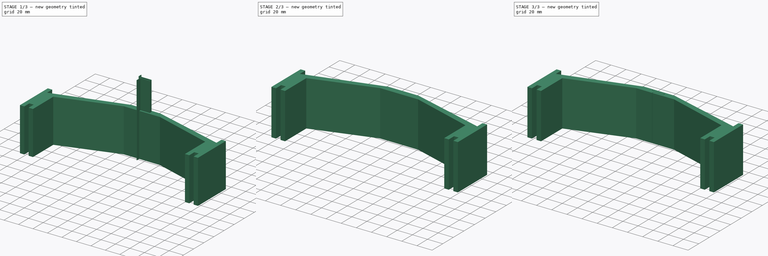
[diagram: build sequence overview — one tinted view per stage of 3, left to right]
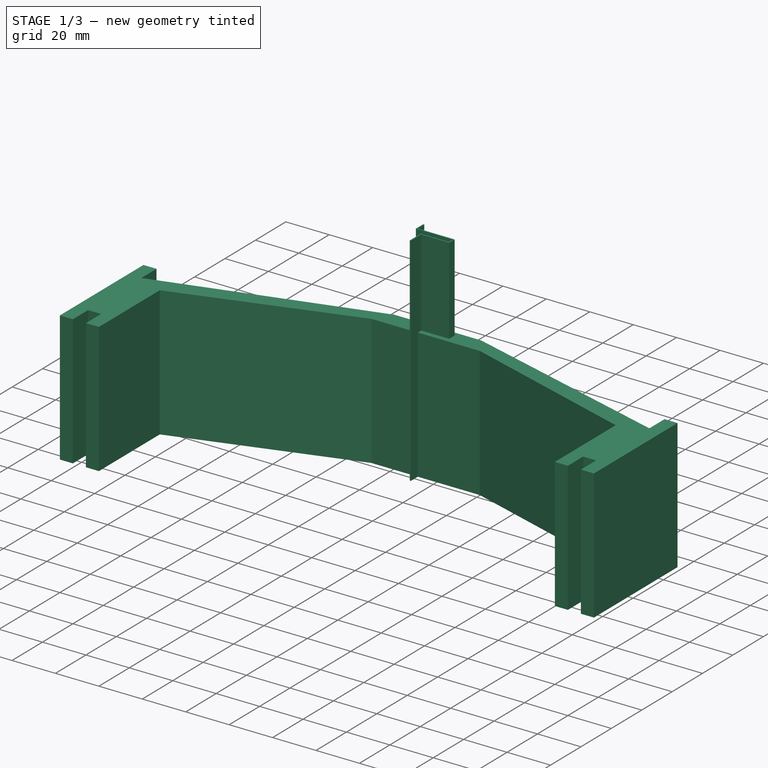
[diagram: stage 1 of 3 — iso view after this stage's code; geometry added in this stage tinted green]
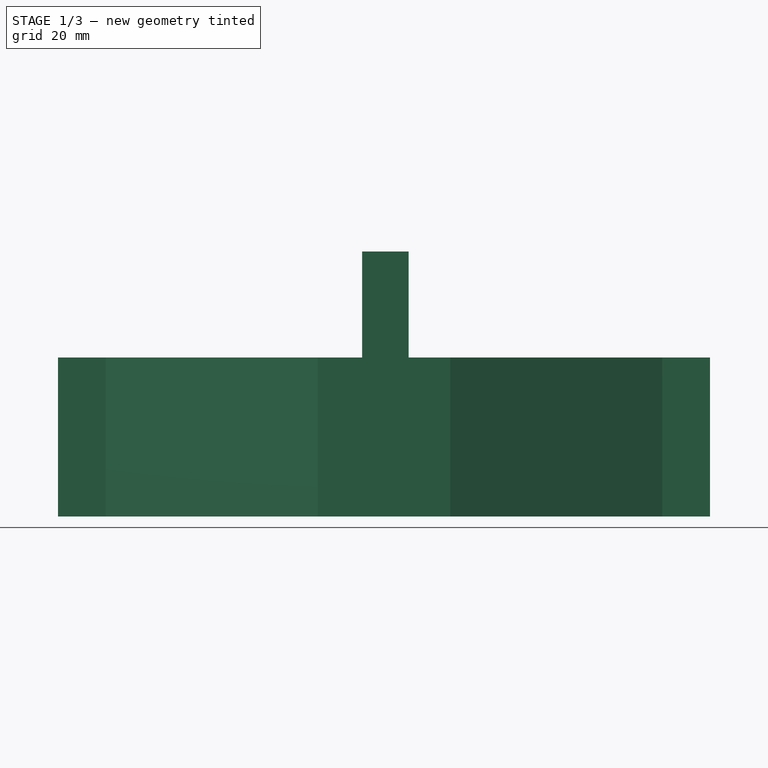
[diagram: stage 1 of 3 — front view after this stage's code; geometry added in this stage tinted green]
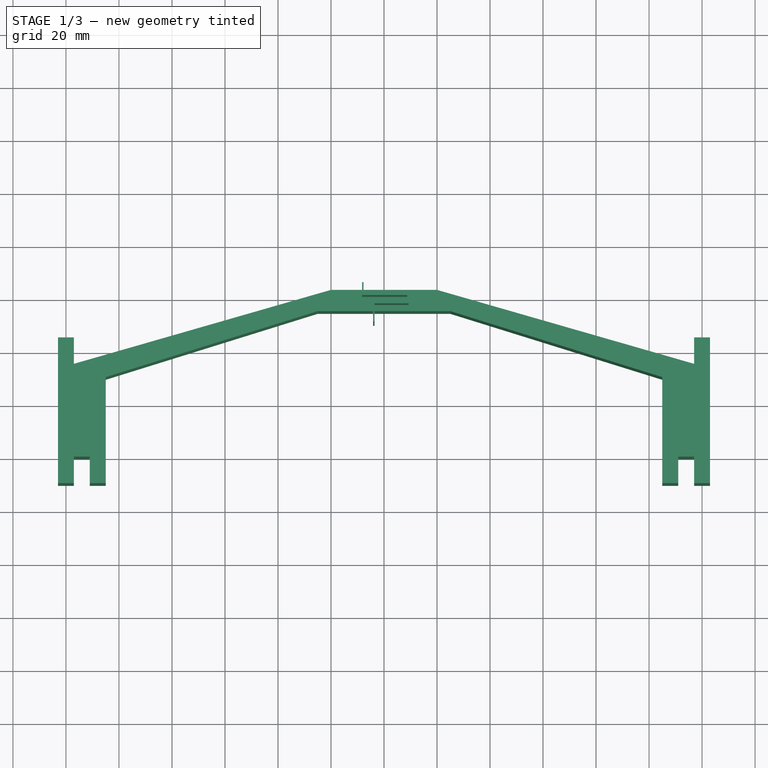
[diagram: stage 1 of 3 — top view after this stage's code; geometry added in this stage tinted green]
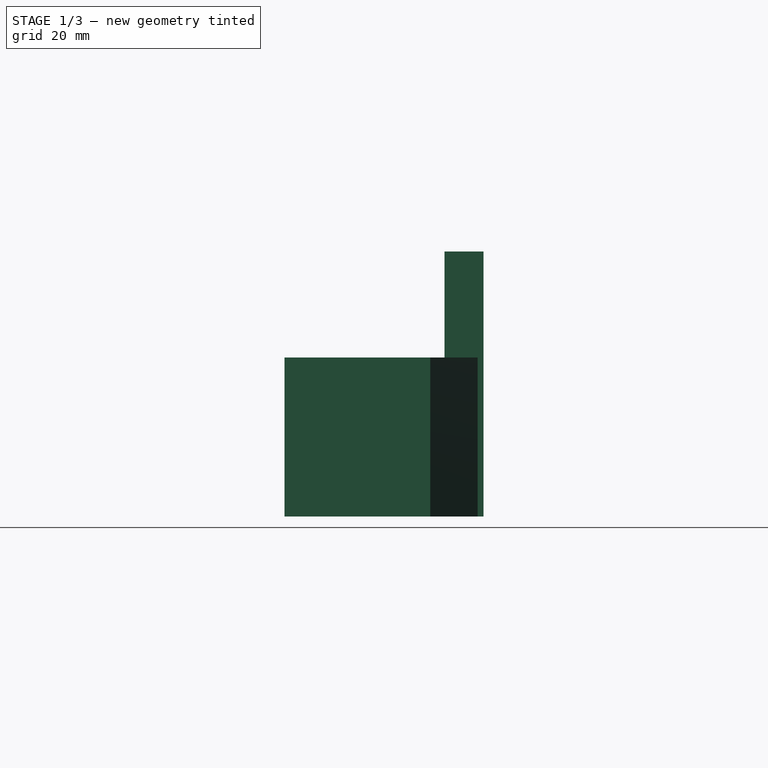
[diagram: stage 1 of 3 — right view after this stage's code; geometry added in this stage tinted green]
FCSTD DOCUMENT  (FreeCAD 0.19R24366 (Git))
Label: lid-holder2
License: All rights reserved
LicenseURL: http://en.wikipedia.org/wiki/All_rights_reserved
objects: Part::FeaturePython×3, Sketcher::SketchObject×2, PartDesign::Pad×1, PartDesign::Body×1, Part::Extrusion×1, App::DocumentObjectGroup×1
note: 9 computed .brp shape members not serialized (recipe doc carries the construction recipe); baked Part::Feature solids carry a one-line shape summary decoded from their .brp

FEATURE [Sketcher::SketchObject] Sketch
  FullyConstrained = false
  MapMode = 5
  Support = -> [XY_Plane]
  sketch-geometry (24):
    g0: LineSegment StartX=-123 StartY=-10 StartZ=0 EndX=-123 EndY=45 EndZ=0
    g1: LineSegment StartX=-123 StartY=45 StartZ=0 EndX=-117 EndY=45 EndZ=0
    g2: LineSegment StartX=-117 StartY=45 StartZ=0 EndX=-117 EndY=35 EndZ=0
    g3: LineSegment StartX=-117 StartY=35 StartZ=0 EndX=-20 EndY=62.8984 EndZ=0
    g4: LineSegment StartX=-20 StartY=62.8984 StartZ=0 EndX=20 EndY=62.8984 EndZ=0
    g5: LineSegment StartX=20 StartY=62.8984 StartZ=0 EndX=117 EndY=35 EndZ=0
    g6: LineSegment StartX=117 StartY=35 StartZ=0 EndX=117 EndY=45 EndZ=0
    g7: LineSegment StartX=117 StartY=45 StartZ=0 EndX=123 EndY=45 EndZ=0
    g8: LineSegment StartX=123 StartY=45 StartZ=0 EndX=123 EndY=-10 EndZ=0
    g9: LineSegment StartX=123 StartY=-10 StartZ=0 EndX=117 EndY=-10 EndZ=0
    g10: LineSegment StartX=117 StartY=-10 StartZ=0 EndX=117 EndY=-3.2e-14 EndZ=0
    g11: LineSegment StartX=117 StartY=-3.2e-14 StartZ=0 EndX=111 EndY=-3.2e-14 EndZ=0
    g12: LineSegment StartX=111 StartY=-3.2e-14 StartZ=0 EndX=111 EndY=-10 EndZ=0
    g13: LineSegment StartX=111 StartY=-10 StartZ=0 EndX=105 EndY=-10 EndZ=0
    g14: LineSegment StartX=-111 StartY=-10 StartZ=0 EndX=-105 EndY=-10 EndZ=0
    g15: LineSegment StartX=-111 StartY=3.24e-14 StartZ=0 EndX=-117 EndY=3.24e-14 EndZ=0
    g16: LineSegment StartX=-117 StartY=3.24e-14 StartZ=0 EndX=-117 EndY=-10 EndZ=0
    g17: LineSegment StartX=-117 StartY=-10 StartZ=0 EndX=-123 EndY=-10 EndZ=0
    g18: LineSegment StartX=-111 StartY=3.24e-14 StartZ=0 EndX=-111 EndY=-10 EndZ=0
    g19: LineSegment StartX=-105 StartY=30 StartZ=0 EndX=-25 EndY=54.8984 EndZ=0
    g20: LineSegment StartX=-25 StartY=54.8984 StartZ=0 EndX=25 EndY=54.8984 EndZ=0
    g21: LineSegment StartX=25 StartY=54.8984 StartZ=0 EndX=105 EndY=30 EndZ=0
    g22: LineSegment StartX=-105 StartY=-10 StartZ=0 EndX=-105 EndY=30 EndZ=0
    g23: LineSegment StartX=105 StartY=-10 StartZ=0 EndX=105 EndY=30 EndZ=0
  constraints (68):
    c: Coincident(g0,g17)
    c: Coincident(g17,g16)
    c: Coincident(g16,g15)
    c: Coincident(g2,g1)
    c: Coincident(g0,g1)
    c: Coincident(g5,g6)
    c: Coincident(g12,g11)
    c: Coincident(g13,g12)
    c: Coincident(g10,g9)
    c: Coincident(g8,g9)
    c: Horizontal(g15)
    c: Horizontal(g1)
    c: Horizontal(g11)
    c: Horizontal(g9)
    c: Horizontal(g13)
    c: Horizontal(g7)
    c: Horizontal(g17)
    c: Horizontal(g14)
    c: Vertical(g0)
    c: Vertical(g2)
    c: Vertical(g16)
    c: Vertical(g18)
    c: Vertical(g22)
    c: Vertical(g23)
    c: Vertical(g12)
    c: Vertical(g10)
    c: Vertical(g8)
    c: Vertical(g6)
    c: Coincident(g19,g20)
    c: Coincident(g20,g21)
    c: Coincident(g3,g4)
    c: Coincident(g5,g4)
    c: Coincident(g2,g3)
    c: Coincident(g6,g7)
    c: Coincident(g8,g7)
    c: Coincident(g11,g10)
    c: Coincident(g23,g13)
    c: Coincident(g23,g21)
    c: Coincident(g19,g22)
    c: Coincident(g14,g22)
    c: Coincident(g18,g14)
    c: Coincident(g15,g18)
    c: Equal(g17,g15)
    c: Equal(g15,g14)
    c: Equal(g14,g1)
    c: Equal(g1,g13)
    c: Equal(g13,g11)
    c: Equal(g11,g9)
    c: Equal(g9,g7)
    c: DistanceX(g9,g9) = 6
    c: DistanceY(g16,g16) = 10
    c: Equal(g16,g18)
    c: Equal(g18,g2)
    c: Equal(g18,g12)
    c: Equal(g12,g10)
    c: Equal(g10,g6)
    c: DistanceX(g4,g4) = 40
    c: DistanceX(g20,g20) = 50
    c: Symmetric(g3,g4,g-2)
    c: Symmetric(g20,g19,g-2)
    c: DistanceX(g15,g11) = 222
    c: Equal(g22,g23)
    c: DistanceY(g22,g22) = 40
    c: Equal(g19,g21)
    c: Symmetric(g15,g11,g-1)
    c: DistanceY(g0,g0) = 55
    c: Equal(g8,g0)
    c: DistanceY(g19,g3) = 8
FEATURE [PartDesign::Pad] Pad
  Direction = (1,1,1)
  Length = 60
  Length2 = 100
  Profile = -> Sketch
  Type = 0
FEATURE [Sketcher::SketchObject] Sketch001
  FullyConstrained = false
  MapMode = 5
  Support = -> [XY_Plane]
  sketch-geometry (12):
    g0: LineSegment StartX=-8.23235 StartY=65.1134 StartZ=0 EndX=-8.23235 EndY=60.2598 EndZ=0
    g1: LineSegment StartX=-8.23235 StartY=60.2598 StartZ=0 EndX=8.789 EndY=60.2598 EndZ=0
    g2: LineSegment StartX=8.789 StartY=60.2598 StartZ=0 EndX=8.789 EndY=57.6743 EndZ=0
    g3: LineSegment StartX=8.789 StartY=57.6743 StartZ=0 EndX=-4.09689 EndY=57.6743 EndZ=0
    g4: LineSegment StartX=-4.09689 StartY=57.6743 StartZ=0 EndX=-4.09689 EndY=50.3693 EndZ=0
    g5: LineSegment StartX=-4.09689 StartY=50.3693 StartZ=0 EndX=-3.59688 EndY=50.3693 EndZ=0
    g6: LineSegment StartX=-3.59688 StartY=50.3693 StartZ=0 EndX=-3.59688 EndY=57.1743 EndZ=0
    g7: LineSegment StartX=-3.59688 StartY=57.1743 StartZ=0 EndX=9.289 EndY=57.1743 EndZ=0
    g8: LineSegment StartX=9.289 StartY=57.1743 StartZ=0 EndX=9.289 EndY=60.7598 EndZ=0
    g9: LineSegment StartX=9.289 StartY=60.7598 StartZ=0 EndX=-7.73235 EndY=60.7598 EndZ=0
    g10: LineSegment StartX=-7.73235 StartY=60.7598 StartZ=0 EndX=-7.73235 EndY=65.1134 EndZ=0
    g11: LineSegment StartX=-7.73235 StartY=65.1134 StartZ=0 EndX=-8.23235 EndY=65.1134 EndZ=0
  constraints (29):
    c: Vertical(g0)
    c: Coincident(g0,g1)
    c: Horizontal(g1)
    c: Coincident(g1,g2)
    c: Vertical(g2)
    c: Coincident(g2,g3)
    c: Horizontal(g3)
    c: Coincident(g3,g4)
    c: Vertical(g4)
    c: Coincident(g4,g5)
    c: Coincident(g5,g6)
    c: Vertical(g6)
    c: Coincident(g6,g7)
    c: Horizontal(g7)
    c: Coincident(g7,g8)
    c: Vertical(g8)
    c: Coincident(g8,g9)
    c: Horizontal(g9)
    c: Coincident(g9,g10)
    c: Vertical(g10)
    c: Coincident(g10,g11)
    c: Coincident(g11,g0)
    c: Equal(g5,g11)
    c: Horizontal(g11)
    c: Horizontal(g5)
    c: DistanceY(g1,g8) = 0.5
    c: DistanceY(g6,g3) = 0.5
    c: DistanceX(g2,g7) = 0.5
    c: DistanceX(g0,g9) = 0.5
FEATURE [PartDesign::Body] Body
  Group = -> [Sketch,Pad,Sketch001]
  Origin = -> Origin
  Tip = -> Pad
FEATURE [Part::Extrusion] Extrude
  Base = -> Sketch001
  Dir = (0,0,1)
  DirMode = 2
  FaceMakerClass = Part::FaceMakerBullseye
  LengthFwd = 100
  LengthRev = 0
  Solid = true
  Symmetric = false
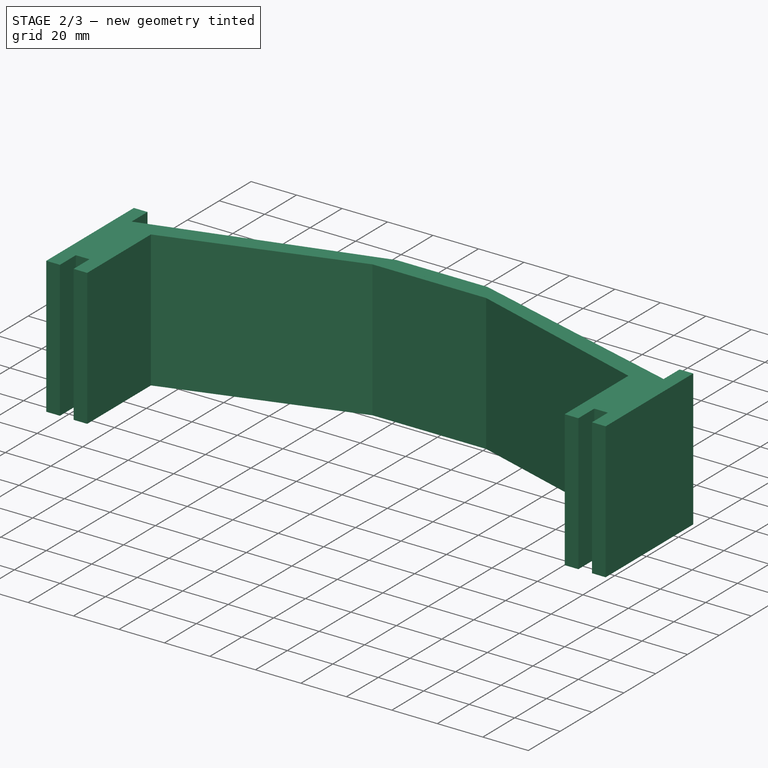
[diagram: stage 2 of 3 — iso view after this stage's code; geometry added in this stage tinted green]
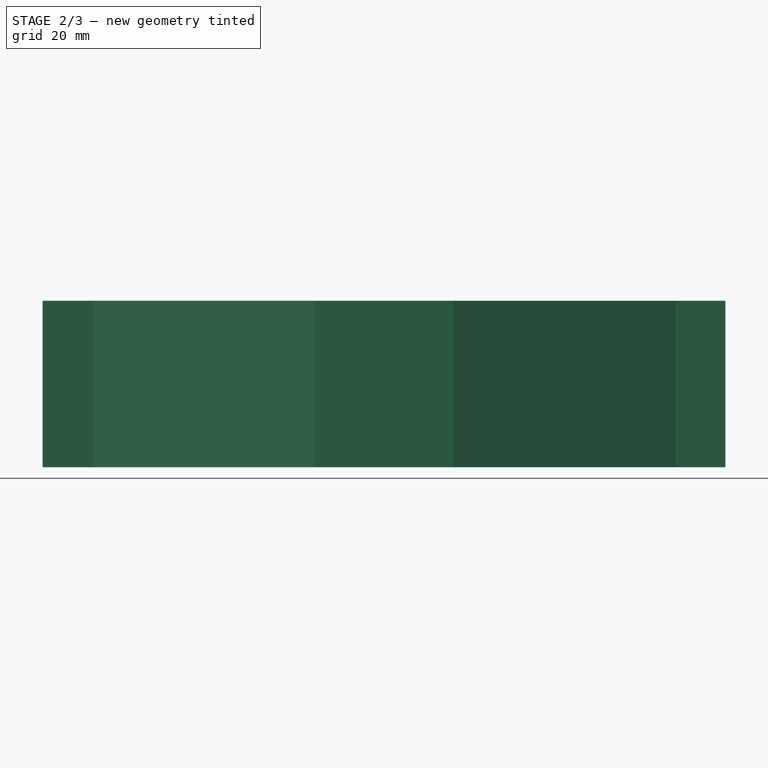
[diagram: stage 2 of 3 — front view after this stage's code; geometry added in this stage tinted green]
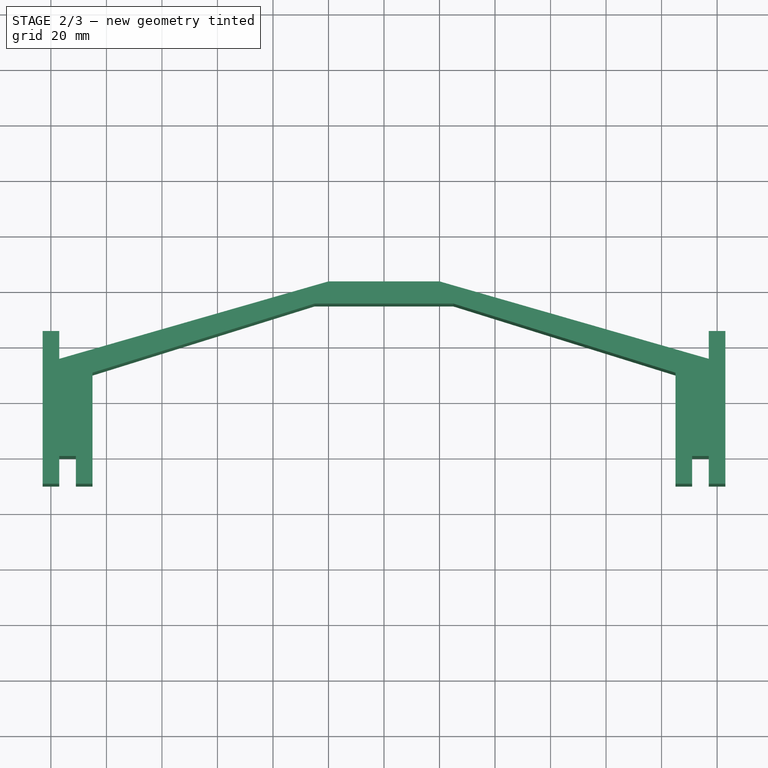
[diagram: stage 2 of 3 — top view after this stage's code; geometry added in this stage tinted green]
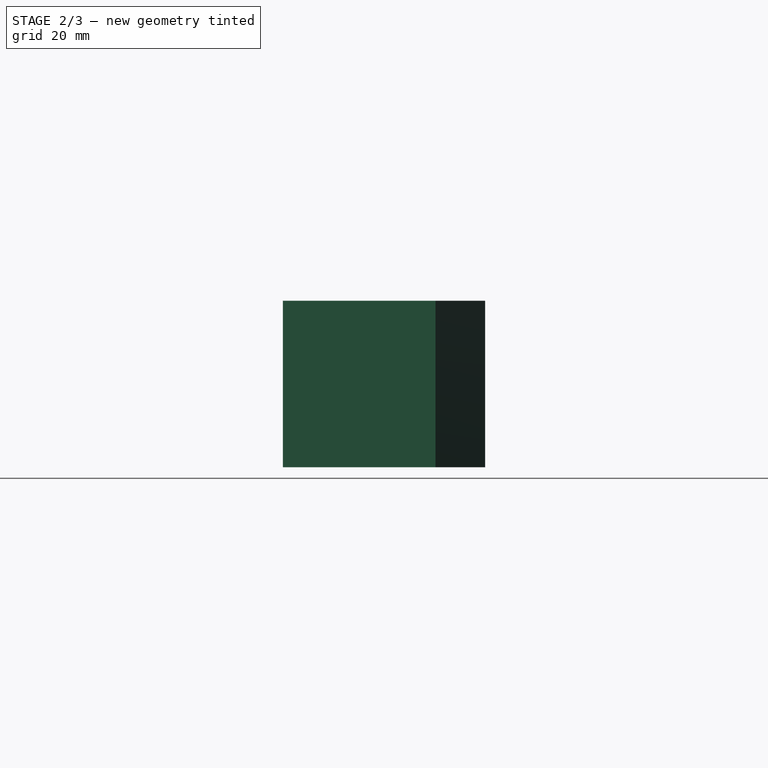
[diagram: stage 2 of 3 — right view after this stage's code; geometry added in this stage tinted green]
FEATURE [Part::FeaturePython] Slice  # WARN: FeaturePython — macro-defined, semantics opaque (R4)
  Base = -> Body
  Mode = 1
  Tolerance = 0
  Tools = -> [Extrude]
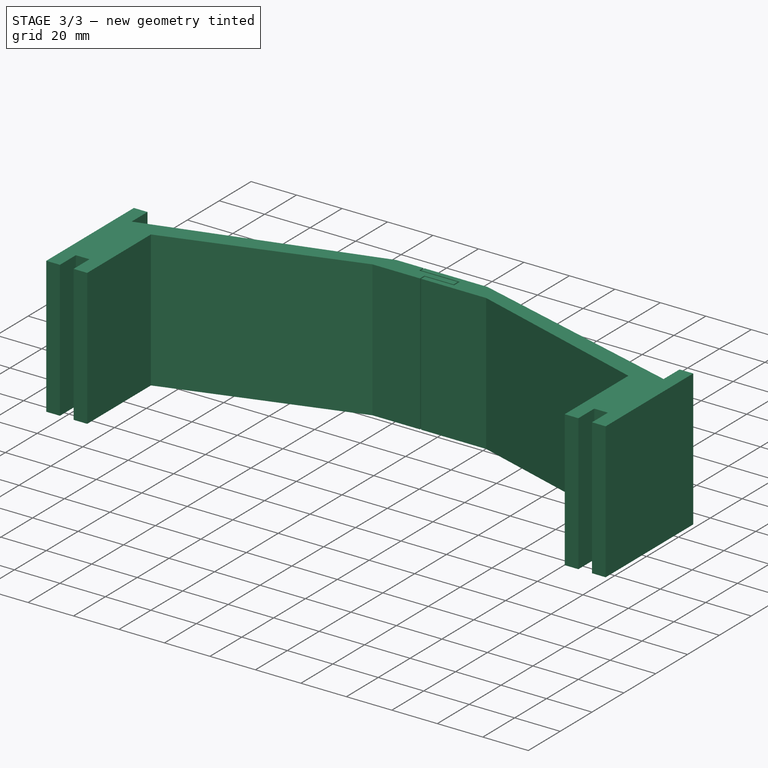
[diagram: stage 3 of 3 — iso view after this stage's code; geometry added in this stage tinted green]
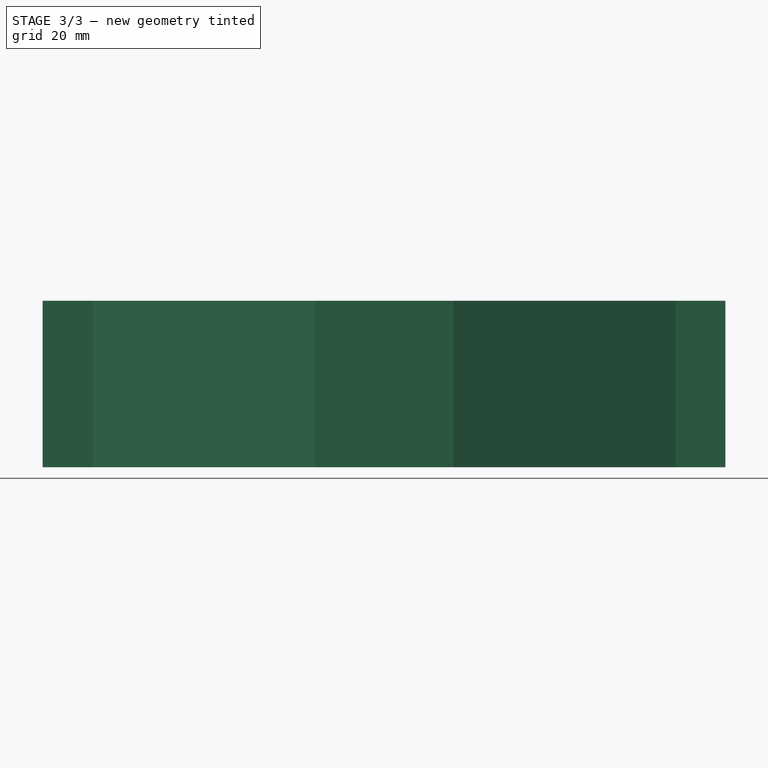
[diagram: stage 3 of 3 — front view after this stage's code; geometry added in this stage tinted green]
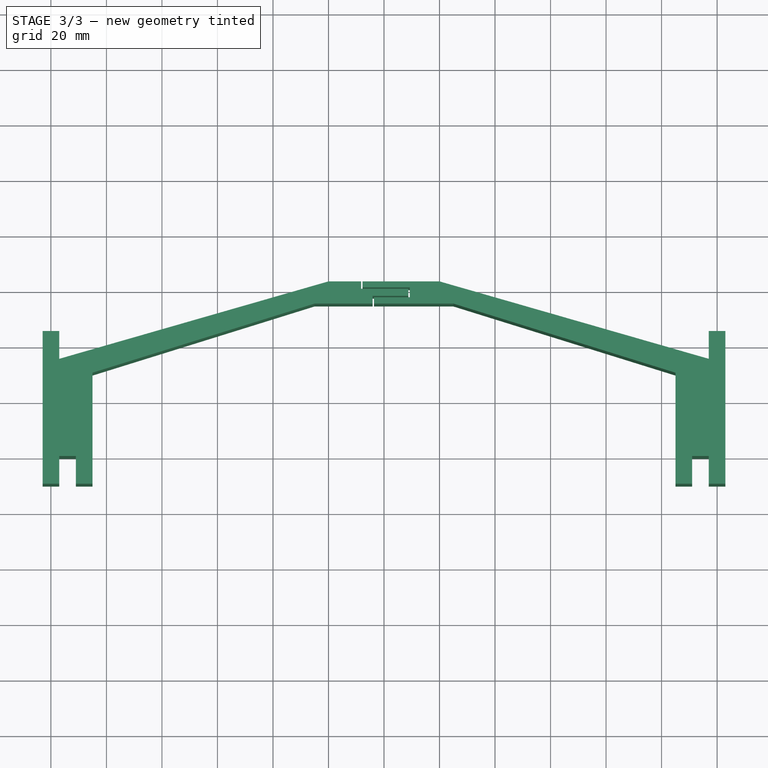
[diagram: stage 3 of 3 — top view after this stage's code; geometry added in this stage tinted green]
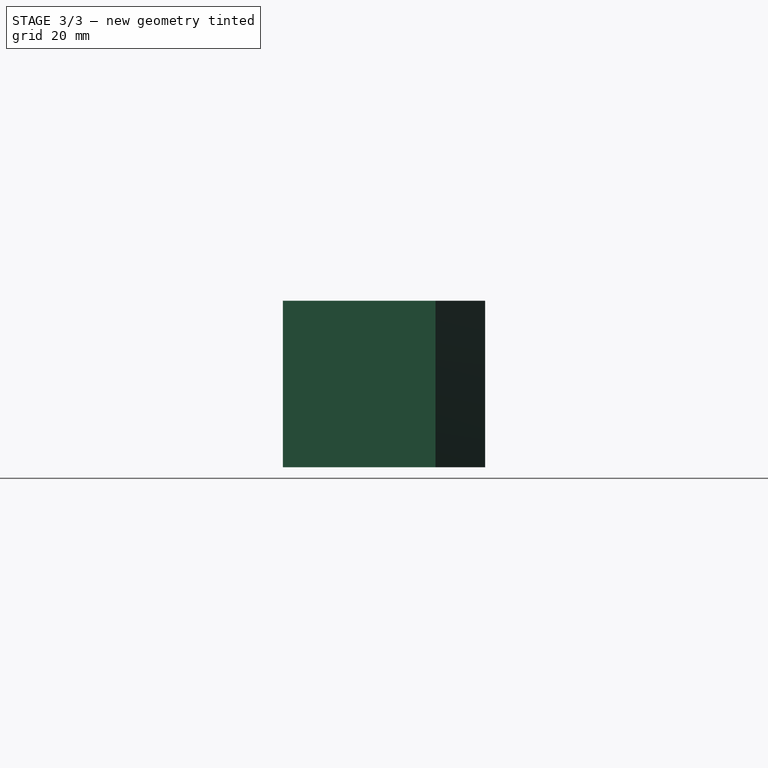
[diagram: stage 3 of 3 — right view after this stage's code; geometry added in this stage tinted green]
FEATURE [Part::FeaturePython] Slice_child0  label="Slice.0"  # WARN: FeaturePython — macro-defined, semantics opaque (R4)
  Base = -> Slice
  FilterType = 1
  Invert = false
  OverrideMaxVal = 0
  WindowFrom = 80
  WindowTo = 100
  items = 0
FEATURE [Part::FeaturePython] Slice_child2  label="Slice.2"  # WARN: FeaturePython — macro-defined, semantics opaque (R4)
  Base = -> Slice
  FilterType = 1
  Invert = false
  OverrideMaxVal = 0
  WindowFrom = 80
  WindowTo = 100
  items = 2
FEATURE [App::DocumentObjectGroup] GrExplode_Slice  label="Exploded Slice"
  Group = -> [Slice_child0,Slice_child2]
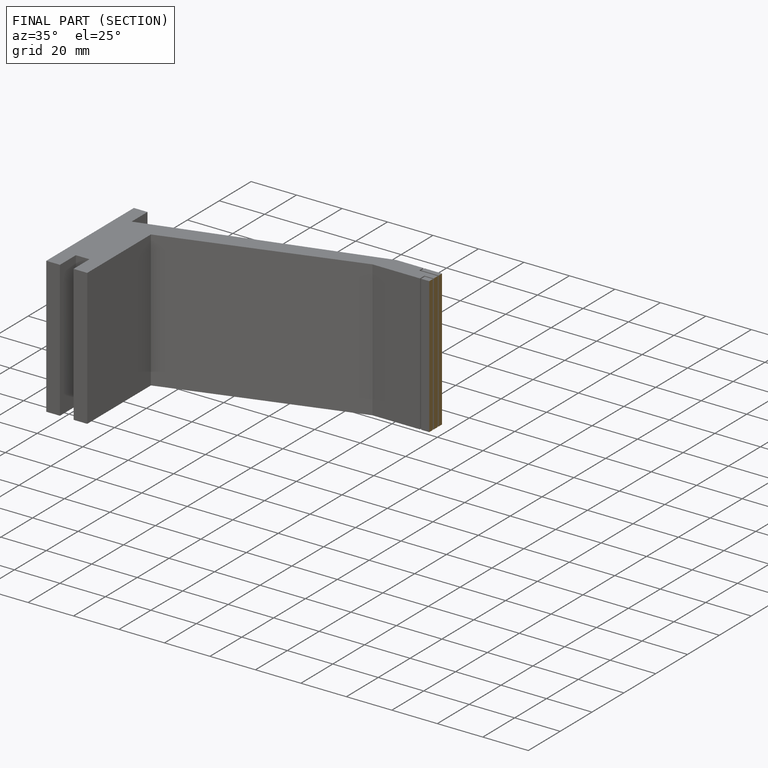
[diagram: finished part — half-section view (interior)]
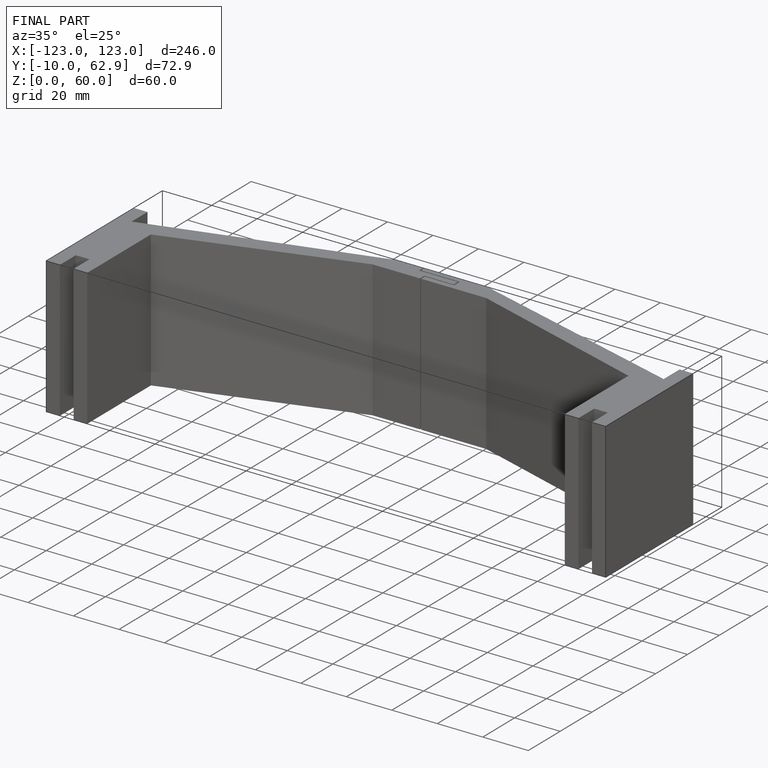
[diagram: finished part — iso view with bounding-box wireframe]
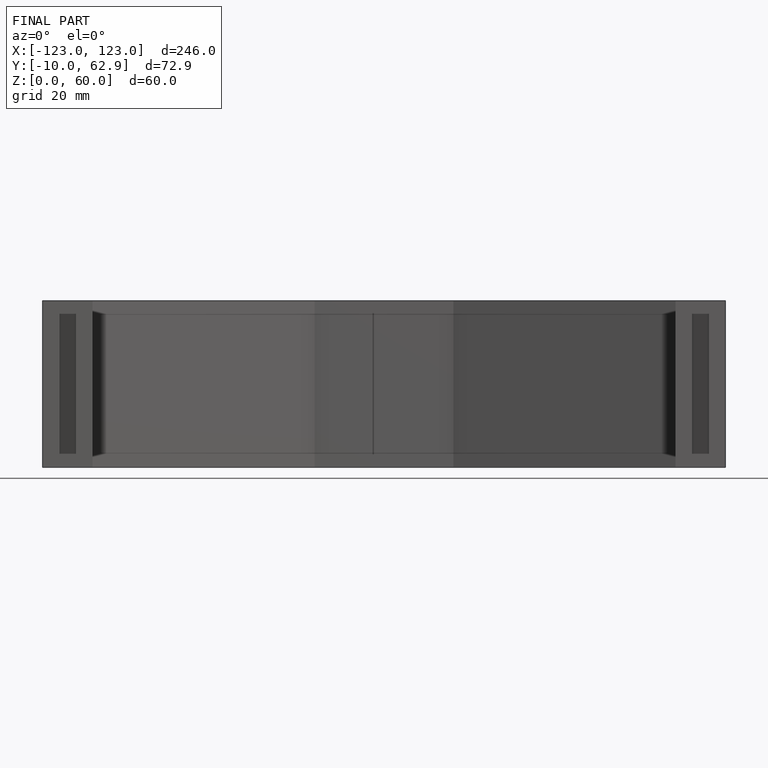
[diagram: finished part — front view with bounding-box wireframe]
